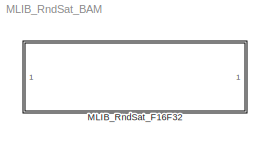
MODEL MLIB_RndSat_BAM
KIND model
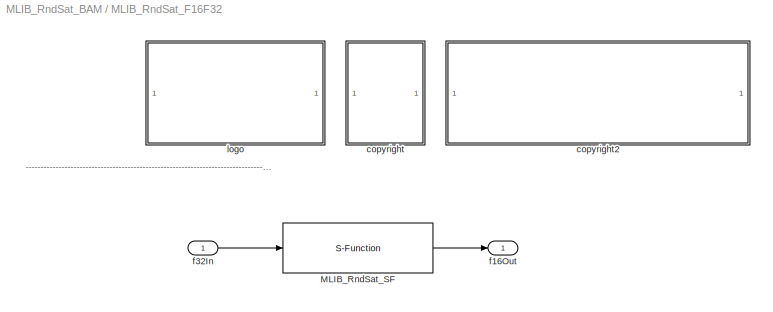
BLOCK [SubSystem] MLIB_RndSat_F16F32
  Ports = [1, 1]
  RequestExecContextInheritance = off
  SID = 1
BLOCK [S-Function] MLIB_RndSat_F16F32/MLIB_RndSat_SF
  EnableBusSupport = off
  FunctionName = MLIB_RndSat_SF_F16F32
  Ports = [1, 1]
  SID = 4
BLOCK [SubSystem] MLIB_RndSat_F16F32/<copyright redacted>
  Ports = []
  RequestExecContextInheritance = off
  SID = 11
BLOCK [SubSystem] MLIB_RndSat_F16F32/copyright2
  Ports = []
  RequestExecContextInheritance = off
  SID = 14
BLOCK [Outport] MLIB_RndSat_F16F32/f16Out
  IconDisplay = Port number
  SID = 6
BLOCK [Inport] MLIB_RndSat_F16F32/f32In
  IconDisplay = Port number
  SID = 5
BLOCK [SubSystem] MLIB_RndSat_F16F32/logo
  Ports = []
  RequestExecContextInheritance = off
  SID = 7
ANNOTATION MLIB_RndSat_F16F32: ---------------------------------------------------------------------------------------------------------------------------------------------------------------------------------------------------
LINE MLIB_RndSat_F16F32/MLIB_RndSat_SF:1 -> MLIB_RndSat_F16F32/f16Out:1
LINE MLIB_RndSat_F16F32/f32In:1 -> MLIB_RndSat_F16F32/MLIB_RndSat_SF:1
